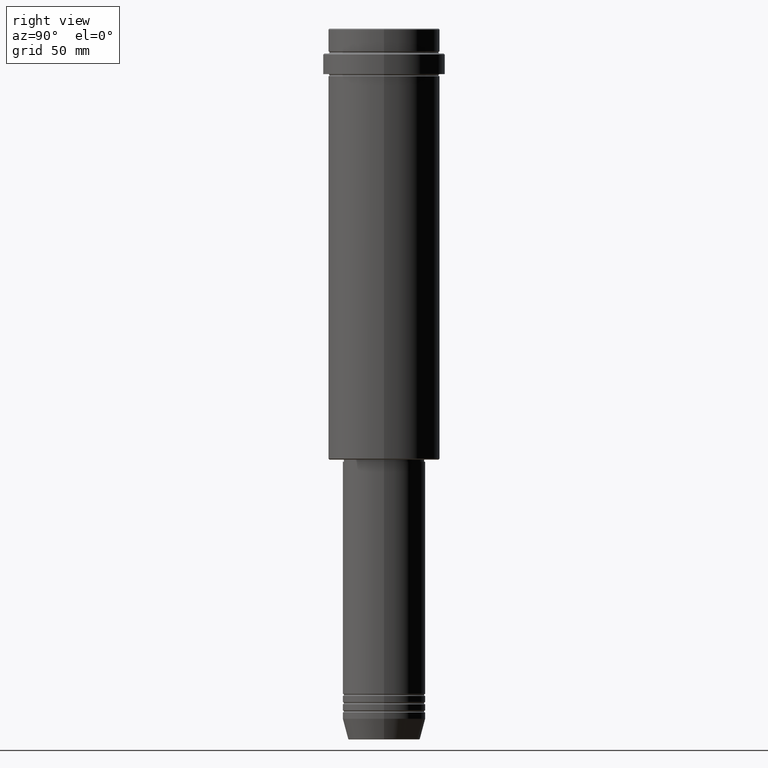
[diagram: clean part render]
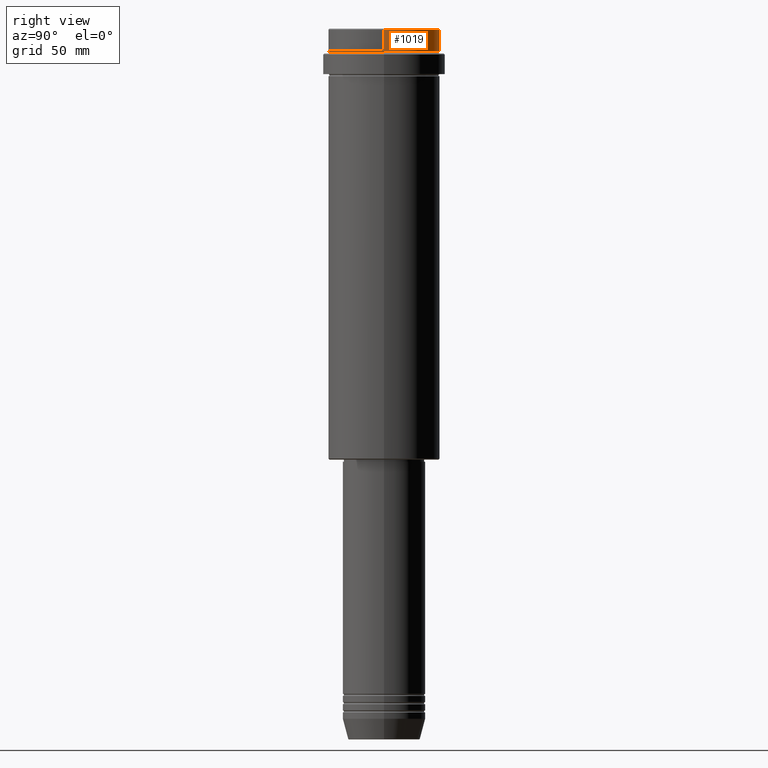
[diagram: same view with one face highlighted and labeled with its STEP entity id]
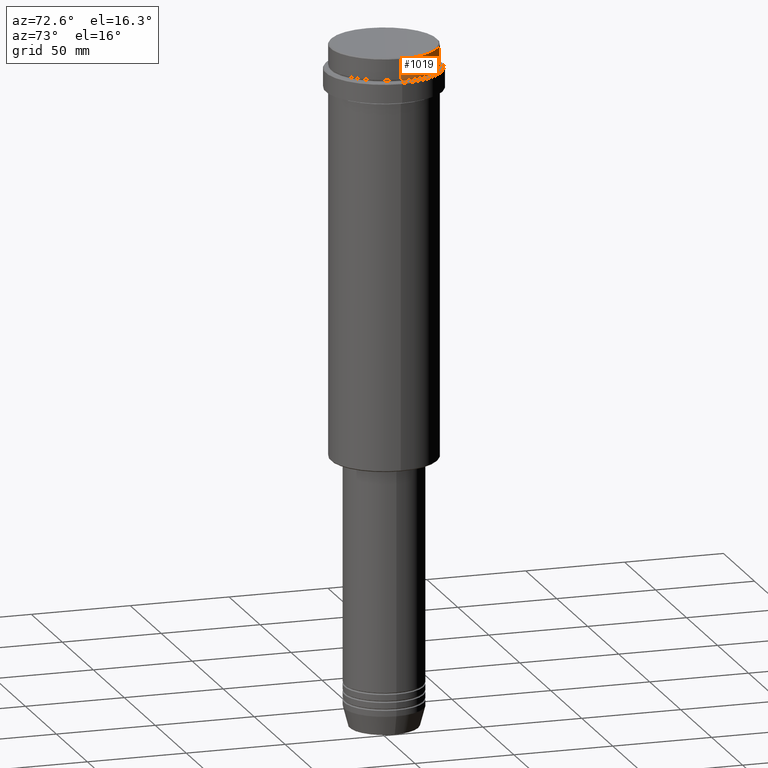
[diagram: same view with one face highlighted and labeled with its STEP entity id]
A machine part, right view. The second image highlights one B-rep face of the part: STEP entity #1019.
A second angle (auxiliary view) of the same face is appended — the face is thin or edge-on in the first view.
In plain terms, the highlighted cylindrical surface (partial cylindrical patch) has radius 27 mm, axis along (-0, -0, 1).
Its self-contained STEP definition (entity closure, byte-faithful):
#1 = CYLINDRICAL_SURFACE ( 'NONE', #1036, 27.00000000000000355 ) ;
#11 = CIRCLE ( 'NONE', #48, 27.00000000000000355 ) ;
#17 = EDGE_CURVE ( 'NONE', #810, #1215, #337, .T. ) ;
#43 = DIRECTION ( 'NONE',  ( -0.000000000000000000, -0.000000000000000000, 1.000000000000000000 ) ) ;
#48 = AXIS2_PLACEMENT_3D ( 'NONE', #931, #55, #916 ) ;
#55 = DIRECTION ( 'NONE',  ( 0.000000000000000000, 0.000000000000000000, -1.000000000000000000 ) ) ;
#95 = CARTESIAN_POINT ( 'NONE',  ( 0.000000000000000000, 0.000000000000000000, -11.00000000000000178 ) ) ;
#146 = DIRECTION ( 'NONE',  ( -0.000000000000000000, -0.000000000000000000, 1.000000000000000000 ) ) ;
#222 = ORIENTED_EDGE ( 'NONE', *, *, #17, .T. ) ;
#262 = LINE ( 'NONE', #819, #921 ) ;
#272 = LINE ( 'NONE', #928, #1013 ) ;
#331 = EDGE_LOOP ( 'NONE', ( #222, #672, #1391, #932 ) ) ;
#337 = CIRCLE ( 'NONE', #1358, 27.00000000000000355 ) ;
#435 = FACE_OUTER_BOUND ( 'NONE', #331, .T. ) ;
#534 = DIRECTION ( 'NONE',  ( 1.000000000000000000, 0.000000000000000000, 0.000000000000000000 ) ) ;
#672 = ORIENTED_EDGE ( 'NONE', *, *, #703, .T. ) ;
#703 = EDGE_CURVE ( 'NONE', #1215, #924, #262, .T. ) ;
#717 = CARTESIAN_POINT ( 'NONE',  ( 27.00000000000000355, 0.000000000000000000, -11.00000000000000178 ) ) ;
#783 = EDGE_CURVE ( 'NONE', #810, #1407, #272, .T. ) ;
#790 = CARTESIAN_POINT ( 'NONE',  ( 0.000000000000000000, 0.000000000000000000, 0.000000000000000000 ) ) ;
#810 = VERTEX_POINT ( 'NONE', #717 ) ;
#819 = CARTESIAN_POINT ( 'NONE',  ( -27.00000000000000355, 3.306546357697854128E-15, 0.000000000000000000 ) ) ;
#824 = CARTESIAN_POINT ( 'NONE',  ( 27.00000000000000355, 0.000000000000000000, -0.4999999999999241163 ) ) ;
#883 = DIRECTION ( 'NONE',  ( 1.000000000000000000, 0.000000000000000000, 0.000000000000000000 ) ) ;
#916 = DIRECTION ( 'NONE',  ( 1.000000000000000000, 0.000000000000000000, 0.000000000000000000 ) ) ;
#921 = VECTOR ( 'NONE', #146, 1000.000000000000000 ) ;
#924 = VERTEX_POINT ( 'NONE', #1386 ) ;
#928 = CARTESIAN_POINT ( 'NONE',  ( 27.00000000000000355, 0.000000000000000000, 0.000000000000000000 ) ) ;
#931 = CARTESIAN_POINT ( 'NONE',  ( 0.000000000000000000, 0.000000000000000000, -0.4999999999999241163 ) ) ;
#932 = ORIENTED_EDGE ( 'NONE', *, *, #783, .F. ) ;
#1000 = DIRECTION ( 'NONE',  ( -0.000000000000000000, -0.000000000000000000, 1.000000000000000000 ) ) ;
#1013 = VECTOR ( 'NONE', #43, 1000.000000000000000 ) ;
#1019 = ADVANCED_FACE ( 'NONE', ( #435 ), #1, .T. ) ;
#1036 = AXIS2_PLACEMENT_3D ( 'NONE', #790, #1000, #883 ) ;
#1215 = VERTEX_POINT ( 'NONE', #1274 ) ;
#1274 = CARTESIAN_POINT ( 'NONE',  ( -27.00000000000000355, 3.306546357697854128E-15, -11.00000000000000178 ) ) ;
#1353 = EDGE_CURVE ( 'NONE', #924, #1407, #11, .T. ) ;
#1358 = AXIS2_PLACEMENT_3D ( 'NONE', #95, #1397, #534 ) ;
#1386 = CARTESIAN_POINT ( 'NONE',  ( -27.00000000000000355, 3.306546357697854128E-15, -0.4999999999999241163 ) ) ;
#1391 = ORIENTED_EDGE ( 'NONE', *, *, #1353, .T. ) ;
#1397 = DIRECTION ( 'NONE',  ( -0.000000000000000000, -0.000000000000000000, 1.000000000000000000 ) ) ;
#1407 = VERTEX_POINT ( 'NONE', #824 ) ;